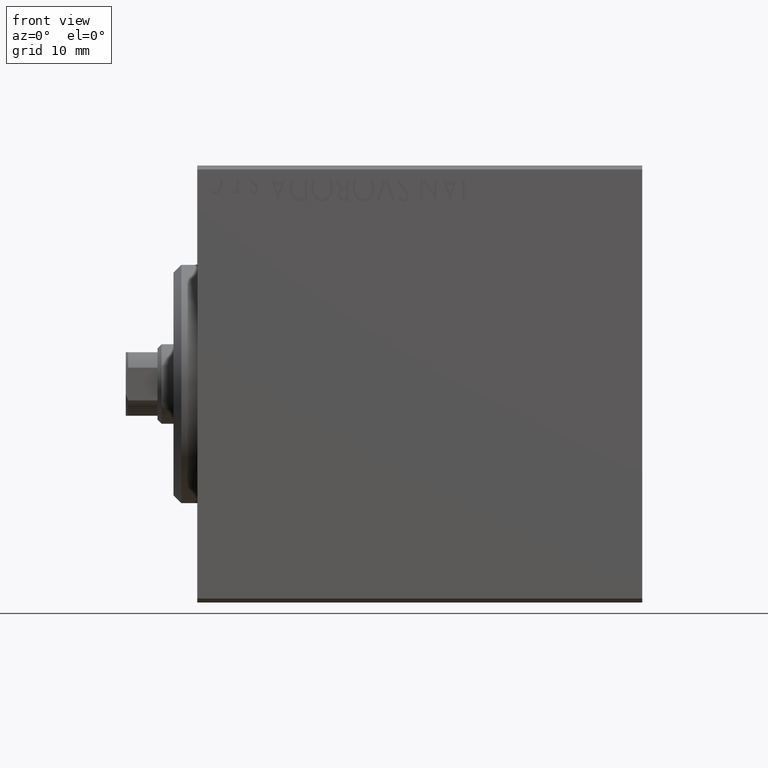
[diagram: clean part render]
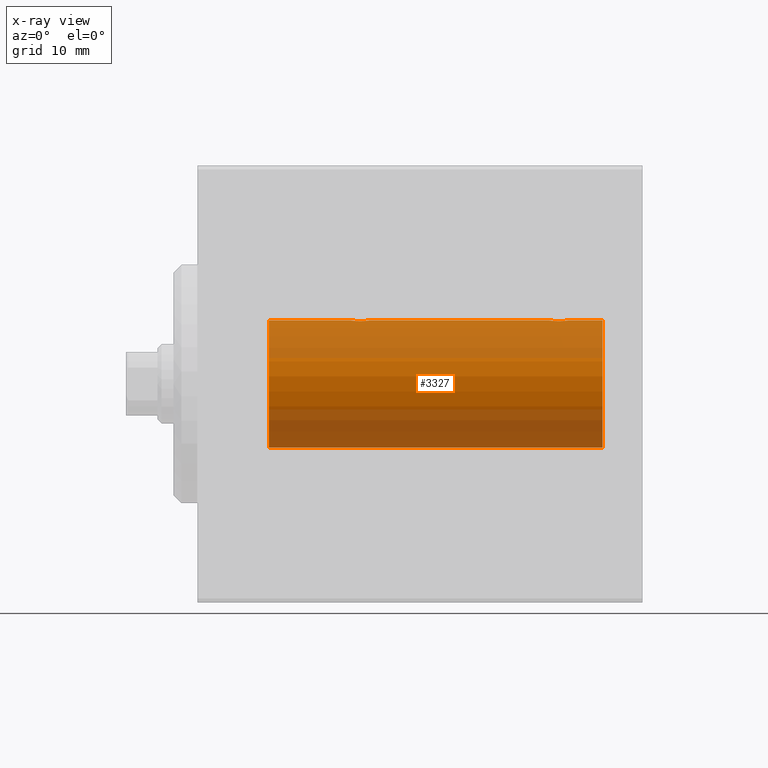
[diagram: x-ray — body ghosted, one internal face saturated and labeled with its STEP entity id]
A machine part, front view, then the same camera in x-ray: the body is ghosted and one INTERNAL B-rep face — a face not visible from any outside direction — is saturated and labeled: STEP entity #3327.
In plain terms, the highlighted cylindrical surface (partial cylindrical patch) has radius 8 mm, axis along (-1, -0, -0).
Its self-contained STEP definition (entity closure, byte-faithful):
#1 = DIRECTION ( 'NONE',  ( -1.000000000000000000, 0.000000000000000000, 0.000000000000000000 ) ) ;
#201 = CIRCLE ( 'NONE', #41017, 7.999999999999998224 ) ;
#277 = CARTESIAN_POINT ( 'NONE',  ( 21.71666607977186914, -0.3297258132310516010, 7.994620111903504522 ) ) ;
#396 = LINE ( 'NONE', #9833, #29440 ) ;
#709 = CARTESIAN_POINT ( 'NONE',  ( 19.73732994206309499, -0.9937204387496718638, 7.938174152191987076 ) ) ;
#1139 = CARTESIAN_POINT ( 'NONE',  ( 19.40749082144729343, -0.6288424646912649241, 7.976670562295706368 ) ) ;
#1513 = DIRECTION ( 'NONE',  ( -1.000000000000000000, -0.000000000000000000, -0.000000000000000000 ) ) ;
#2047 = CARTESIAN_POINT ( 'NONE',  ( 44.94455374345275800, -1.122809931695426311, 7.920878051565289901 ) ) ;
#2484 = CARTESIAN_POINT ( 'NONE',  ( 44.67312100220858184, -0.9409612394163470173, 7.944680966683011825 ) ) ;
#2688 = VERTEX_POINT ( 'NONE', #33152 ) ;
#3327 = ADVANCED_FACE ( 'NONE', ( #34266 ), #10069, .F. ) ;
#3513 = ORIENTED_EDGE ( 'NONE', *, *, #9325, .T. ) ;
#4294 = CARTESIAN_POINT ( 'NONE',  ( 21.75000000000000711, -0.1654128203352884796, 8.000000000000001776 ) ) ;
#4537 = CARTESIAN_POINT ( 'NONE',  ( 44.25000000000000000, -4.052102368803510290E-23, 7.999999999999998224 ) ) ;
#4679 = CARTESIAN_POINT ( 'NONE',  ( 51.00000000000000711, 0.000000000000000000, 7.999999999999998224 ) ) ;
#4894 = LINE ( 'NONE', #36488, #20930 ) ;
#5422 = CARTESIAN_POINT ( 'NONE',  ( 45.17169333885885152, -1.217212176555594771, 7.907113222863028312 ) ) ;
#5436 = ORIENTED_EDGE ( 'NONE', *, *, #20599, .F. ) ;
#5643 = CARTESIAN_POINT ( 'NONE',  ( 44.25000000000000000, -4.052102368803510290E-23, 7.999999999999998224 ) ) ;
#5843 = DIRECTION ( 'NONE',  ( -1.000000000000000000, 0.000000000000000000, 0.000000000000000000 ) ) ;
#6507 = CARTESIAN_POINT ( 'NONE',  ( 51.00000000000000711, 0.000000000000000000, 0.000000000000000000 ) ) ;
#7228 = CARTESIAN_POINT ( 'NONE',  ( 19.67312100220859605, -0.9409612394163516802, 7.944680966683013601 ) ) ;
#7316 = ORIENTED_EDGE ( 'NONE', *, *, #43471, .T. ) ;
#7444 = CARTESIAN_POINT ( 'NONE',  ( 20.66440551148902571, -1.250104850332075523, 7.901723728054487417 ) ) ;
#7715 = B_SPLINE_CURVE_WITH_KNOTS ( 'NONE', 3,
 ( #10374, #31861, #14373, #1139, #10592, #7228, #709, #41965, #24050, #28076, #11239, #7444, #34349, #24924, #10810, #38591, #38371, #277, #4294, #24275 ),
 .UNSPECIFIED., .F., .F.,
 ( 4, 2, 2, 2, 2, 2, 2, 2, 2, 4 ),
 ( 0.003914068143704968646, 0.004403205918210080332, 0.004892343692715191150, 0.005136912579967747861, 0.005381481467220303704, 0.005870619241725416257, 0.006359757016230527943, 0.006848894790735639629, 0.007338032565240751315, 0.007827170339745863001 ),
 .UNSPECIFIED. ) ;
#8569 = CARTESIAN_POINT ( 'NONE',  ( 45.66440551148901505, -1.250104850332072859, 7.901723728054492746 ) ) ;
#8794 = CARTESIAN_POINT ( 'NONE',  ( 44.40749082144728277, -0.6288424646912613714, 7.976670562295706368 ) ) ;
#9213 = CARTESIAN_POINT ( 'NONE',  ( 51.00000000000000711, 9.797174393178823685E-16, -7.999999999999998224 ) ) ;
#9237 = CARTESIAN_POINT ( 'NONE',  ( 46.59165033467900230, -0.6303134207467945282, 7.976551562999473433 ) ) ;
#9325 = EDGE_CURVE ( 'NONE', #29031, #10167, #396, .T. ) ;
#9458 = CARTESIAN_POINT ( 'NONE',  ( 46.49841755665749332, -0.7695044314719045042, 7.963745725343520654 ) ) ;
#9776 = VERTEX_POINT ( 'NONE', #4537 ) ;
#9833 = CARTESIAN_POINT ( 'NONE',  ( 51.00000000000000711, 9.797174393178823685E-16, -7.999999999999998224 ) ) ;
#9991 = CARTESIAN_POINT ( 'NONE',  ( 9.000000000000001776, 9.797174393178823685E-16, -7.999999999999998224 ) ) ;
#10069 = CYLINDRICAL_SURFACE ( 'NONE', #28553, 7.999999999999998224 ) ;
#10167 = VERTEX_POINT ( 'NONE', #9991 ) ;
#10374 = CARTESIAN_POINT ( 'NONE',  ( 19.25000000000000000, -4.052102368803510290E-23, 7.999999999999998224 ) ) ;
#10592 = CARTESIAN_POINT ( 'NONE',  ( 19.50041313324087611, -0.7680324342712183672, 7.963892330120039276 ) ) ;
#10810 = CARTESIAN_POINT ( 'NONE',  ( 21.26815485876451461, -0.9994562523959116263, 7.938165420771274405 ) ) ;
#10973 = DIRECTION ( 'NONE',  ( 0.000000000000000000, 0.000000000000000000, 1.000000000000000000 ) ) ;
#11217 = ORIENTED_EDGE ( 'NONE', *, *, #16731, .F. ) ;
#11239 = CARTESIAN_POINT ( 'NONE',  ( 20.33400394983990722, -1.249894643705219410, 7.901756981264364654 ) ) ;
#12142 = CARTESIAN_POINT ( 'NONE',  ( 44.28284287980513056, -0.3279446529214851691, 7.994696267489722175 ) ) ;
#12759 = DIRECTION ( 'NONE',  ( 0.000000000000000000, 0.000000000000000000, 1.000000000000000000 ) ) ;
#12808 = CARTESIAN_POINT ( 'NONE',  ( 45.82701716371747125, -1.217515856520235973, 7.907063872927300174 ) ) ;
#13060 = VECTOR ( 'NONE', #40927, 1000.000000000000000 ) ;
#13562 = LINE ( 'NONE', #27251, #13060 ) ;
#14373 = CARTESIAN_POINT ( 'NONE',  ( 19.28284287980512346, -0.3279446529214878892, 7.994696267489722175 ) ) ;
#14387 = CARTESIAN_POINT ( 'NONE',  ( 51.00000000000000711, 0.000000000000000000, 7.999999999999998224 ) ) ;
#15584 = EDGE_CURVE ( 'NONE', #16211, #30382, #4894, .T. ) ;
#16211 = VERTEX_POINT ( 'NONE', #4679 ) ;
#16371 = CARTESIAN_POINT ( 'NONE',  ( 44.73732994206308433, -0.9937204387496696434, 7.938174152191987076 ) ) ;
#16407 = B_SPLINE_CURVE_WITH_KNOTS ( 'NONE', 3,
 ( #5643, #26268, #12142, #8794, #39942, #2484, #16371, #19296, #2047, #5422, #32546, #8569, #12808, #26050, #19073, #9458, #9237, #43742, #32768, #29401 ),
 .UNSPECIFIED., .F., .F.,
 ( 4, 2, 2, 2, 2, 2, 2, 2, 2, 4 ),
 ( 0.003914068143704962574, 0.004403205918210084668, 0.004892343692715206763, 0.005136912579967760871, 0.005381481467220314979, 0.005870619241725421461, 0.006359757016230529678, 0.006848894790735636159, 0.007338032565240744376, 0.007827170339745850858 ),
 .UNSPECIFIED. ) ;
#16731 = EDGE_CURVE ( 'NONE', #38494, #2688, #13562, .T. ) ;
#17305 = EDGE_CURVE ( 'NONE', #10167, #2688, #38162, .T. ) ;
#17747 = DIRECTION ( 'NONE',  ( -1.000000000000000000, -0.000000000000000000, -0.000000000000000000 ) ) ;
#18643 = ORIENTED_EDGE ( 'NONE', *, *, #42427, .F. ) ;
#19073 = CARTESIAN_POINT ( 'NONE',  ( 46.26815485876451817, -0.9994562523959094058, 7.938165420771274405 ) ) ;
#19296 = CARTESIAN_POINT ( 'NONE',  ( 44.87285837165013902, -1.084361243153316945, 7.926301147147065684 ) ) ;
#19904 = CARTESIAN_POINT ( 'NONE',  ( 19.25000000000000000, -4.052102368803510290E-23, 7.999999999999998224 ) ) ;
#20599 = EDGE_CURVE ( 'NONE', #29031, #16211, #201, .T. ) ;
#20930 = VECTOR ( 'NONE', #1513, 1000.000000000000000 ) ;
#23096 = CARTESIAN_POINT ( 'NONE',  ( 9.000000000000001776, 0.000000000000000000, 0.000000000000000000 ) ) ;
#24050 = CARTESIAN_POINT ( 'NONE',  ( 19.94455374345276155, -1.122809931695431640, 7.920878051565288125 ) ) ;
#24275 = CARTESIAN_POINT ( 'NONE',  ( 21.75000000000000355, -5.238855365914187376E-16, 7.999999999999998224 ) ) ;
#24521 = ORIENTED_EDGE ( 'NONE', *, *, #17305, .T. ) ;
#24924 = CARTESIAN_POINT ( 'NONE',  ( 21.12943792732229298, -1.092287957405117194, 7.925333492638531929 ) ) ;
#26050 = CARTESIAN_POINT ( 'NONE',  ( 46.12943792732229298, -1.092287957405115639, 7.925333492638530153 ) ) ;
#26268 = CARTESIAN_POINT ( 'NONE',  ( 44.25000000000000000, -0.1632520343443069621, 8.000000000000000000 ) ) ;
#26517 = VECTOR ( 'NONE', #17747, 1000.000000000000000 ) ;
#27251 = CARTESIAN_POINT ( 'NONE',  ( 51.00000000000000711, 0.000000000000000000, 7.999999999999998224 ) ) ;
#27279 = EDGE_LOOP ( 'NONE', ( #5436, #3513, #24521, #11217, #43070, #18643, #7316, #28388 ) ) ;
#28076 = CARTESIAN_POINT ( 'NONE',  ( 20.17169333885885862, -1.217212176555599878, 7.907113222863031865 ) ) ;
#28388 = ORIENTED_EDGE ( 'NONE', *, *, #15584, .F. ) ;
#28553 = AXIS2_PLACEMENT_3D ( 'NONE', #43468, #29788, #12759 ) ;
#28628 = CARTESIAN_POINT ( 'NONE',  ( 46.75000000000000000, 2.184524186358155277E-16, 7.999999999999998224 ) ) ;
#28650 = EDGE_CURVE ( 'NONE', #38494, #29238, #7715, .T. ) ;
#29031 = VERTEX_POINT ( 'NONE', #9213 ) ;
#29238 = VERTEX_POINT ( 'NONE', #37388 ) ;
#29401 = CARTESIAN_POINT ( 'NONE',  ( 46.75000000000000000, 2.184524186358155277E-16, 7.999999999999998224 ) ) ;
#29440 = VECTOR ( 'NONE', #37396, 1000.000000000000000 ) ;
#29788 = DIRECTION ( 'NONE',  ( -1.000000000000000000, -0.000000000000000000, -0.000000000000000000 ) ) ;
#30382 = VERTEX_POINT ( 'NONE', #28628 ) ;
#31861 = CARTESIAN_POINT ( 'NONE',  ( 19.25000000000000355, -0.1632520343443080724, 8.000000000000000000 ) ) ;
#32546 = CARTESIAN_POINT ( 'NONE',  ( 45.33400394983990367, -1.249894643705215858, 7.901756981264366431 ) ) ;
#32768 = CARTESIAN_POINT ( 'NONE',  ( 46.75000000000000711, -0.1654128203352883963, 7.999999999999996447 ) ) ;
#33152 = CARTESIAN_POINT ( 'NONE',  ( 9.000000000000001776, 0.000000000000000000, 7.999999999999998224 ) ) ;
#34266 = FACE_OUTER_BOUND ( 'NONE', #27279, .T. ) ;
#34349 = CARTESIAN_POINT ( 'NONE',  ( 20.82701716371747480, -1.217515856520238637, 7.907063872927298398 ) ) ;
#36333 = DIRECTION ( 'NONE',  ( 0.000000000000000000, 0.000000000000000000, 1.000000000000000000 ) ) ;
#36488 = CARTESIAN_POINT ( 'NONE',  ( 51.00000000000000711, 0.000000000000000000, 7.999999999999998224 ) ) ;
#37388 = CARTESIAN_POINT ( 'NONE',  ( 21.75000000000000355, -5.238855365914187376E-16, 7.999999999999998224 ) ) ;
#37396 = DIRECTION ( 'NONE',  ( -1.000000000000000000, -0.000000000000000000, -0.000000000000000000 ) ) ;
#38162 = CIRCLE ( 'NONE', #43179, 7.999999999999998224 ) ;
#38371 = CARTESIAN_POINT ( 'NONE',  ( 21.59165033467900940, -0.6303134207467971928, 7.976551562999473433 ) ) ;
#38494 = VERTEX_POINT ( 'NONE', #19904 ) ;
#38591 = CARTESIAN_POINT ( 'NONE',  ( 21.49841755665748622, -0.7695044314719065026, 7.963745725343518878 ) ) ;
#39942 = CARTESIAN_POINT ( 'NONE',  ( 44.50041313324088321, -0.7680324342712147034, 7.963892330120037499 ) ) ;
#40927 = DIRECTION ( 'NONE',  ( -1.000000000000000000, -0.000000000000000000, -0.000000000000000000 ) ) ;
#41017 = AXIS2_PLACEMENT_3D ( 'NONE', #6507, #5843, #36333 ) ;
#41965 = CARTESIAN_POINT ( 'NONE',  ( 19.87285837165014613, -1.084361243153319387, 7.926301147147063908 ) ) ;
#42410 = LINE ( 'NONE', #14387, #26517 ) ;
#42427 = EDGE_CURVE ( 'NONE', #9776, #29238, #42410, .T. ) ;
#43070 = ORIENTED_EDGE ( 'NONE', *, *, #28650, .T. ) ;
#43179 = AXIS2_PLACEMENT_3D ( 'NONE', #23096, #1, #10973 ) ;
#43468 = CARTESIAN_POINT ( 'NONE',  ( 51.00000000000000711, 0.000000000000000000, 0.000000000000000000 ) ) ;
#43471 = EDGE_CURVE ( 'NONE', #9776, #30382, #16407, .T. ) ;
#43742 = CARTESIAN_POINT ( 'NONE',  ( 46.71666607977186914, -0.3297258132310492140, 7.994620111903504522 ) ) ;